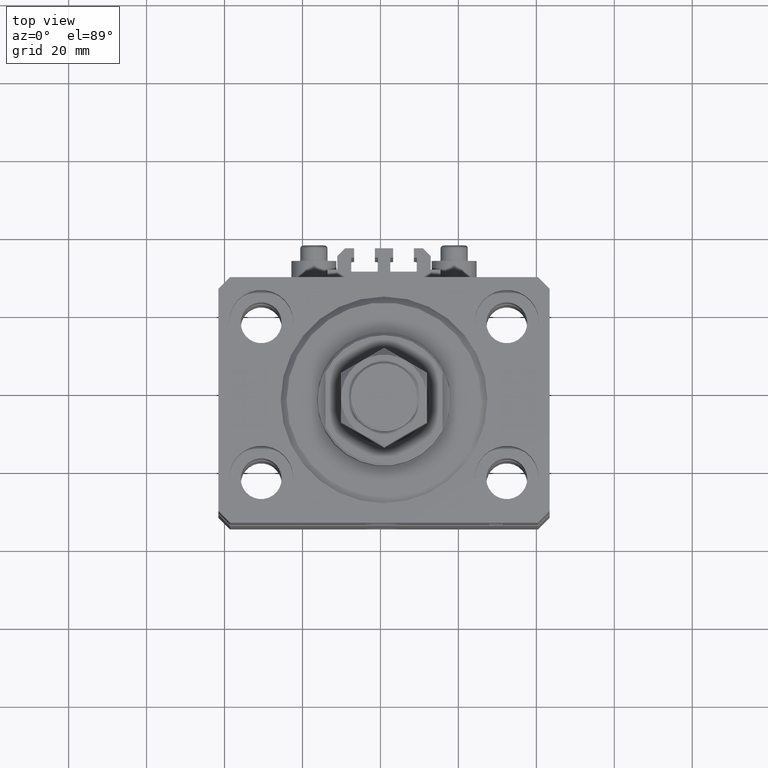
[diagram: clean part render]
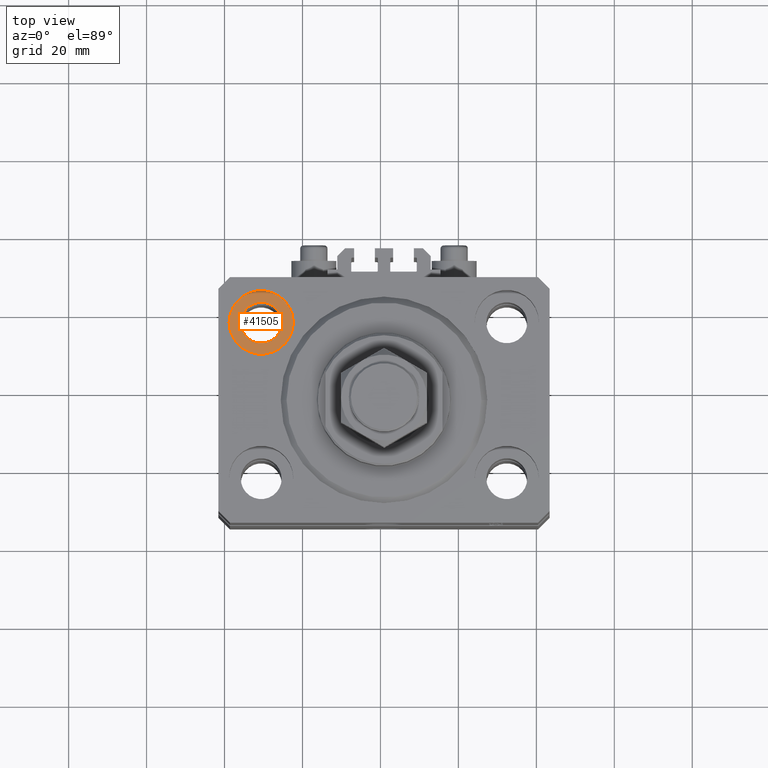
[diagram: same view with one face highlighted and labeled with its STEP entity id]
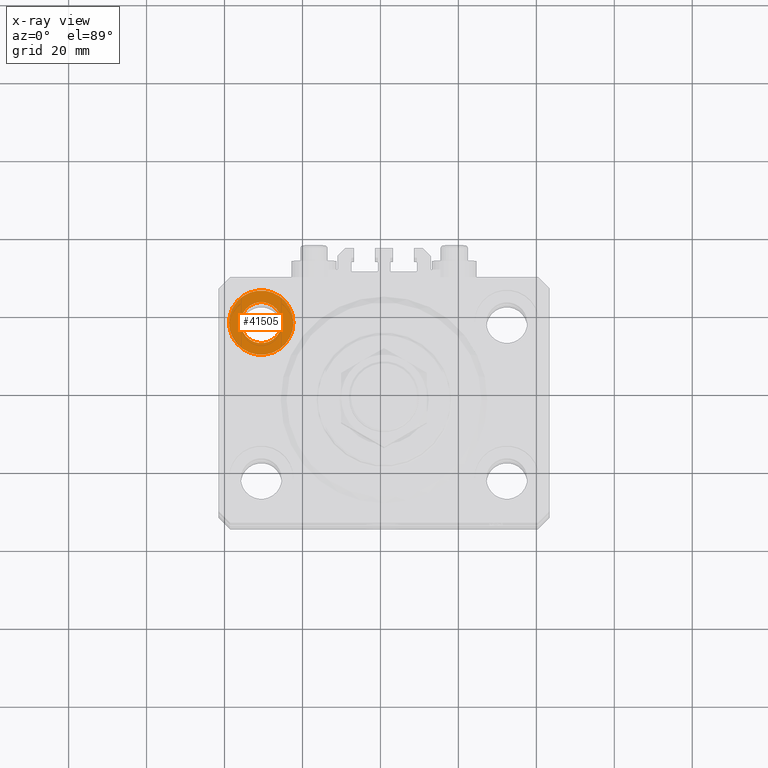
[diagram: x-ray of the same camera — body ghosted, the highlighted face saturated]
A machine part, top view. The second image highlights one B-rep face of the part: STEP entity #41505.
The next image is the same camera in x-ray: the body ghosted, the highlighted face saturated — about 0% of this face is hidden behind the body in this view.
In plain terms, the highlighted planar face has unit normal (0, 0, 1).
Its self-contained STEP definition (entity closure, byte-faithful):
#1587 = DIRECTION ( 'NONE',  ( 0.000000000000000000, 0.000000000000000000, 1.000000000000000000 ) ) ;
#2820 = VERTEX_POINT ( 'NONE', #44789 ) ;
#3392 = DIRECTION ( 'NONE',  ( 0.000000000000000000, 0.000000000000000000, 1.000000000000000000 ) ) ;
#4706 = CIRCLE ( 'NONE', #11875, 5.250000000000000888 ) ;
#5447 = CARTESIAN_POINT ( 'NONE',  ( -23.25000000000000000, 20.00000000000000000, -11.00000000000000000 ) ) ;
#5473 = CIRCLE ( 'NONE', #34874, 5.250000000000000888 ) ;
#6371 = CARTESIAN_POINT ( 'NONE',  ( -31.50000000000000000, 20.00000000000000000, -11.00000000000000000 ) ) ;
#6716 = CIRCLE ( 'NONE', #25022, 8.250000000000000000 ) ;
#9622 = DIRECTION ( 'NONE',  ( 0.000000000000000000, 0.000000000000000000, 1.000000000000000000 ) ) ;
#10309 = PLANE ( 'NONE',  #11986 ) ;
#11875 = AXIS2_PLACEMENT_3D ( 'NONE', #13220, #43583, #36348 ) ;
#11986 = AXIS2_PLACEMENT_3D ( 'NONE', #25505, #1587, #31959 ) ;
#12295 = EDGE_CURVE ( 'NONE', #27631, #2820, #6716, .T. ) ;
#12629 = CARTESIAN_POINT ( 'NONE',  ( -36.75000000000000000, 20.00000000000000000, -11.00000000000000000 ) ) ;
#13220 = CARTESIAN_POINT ( 'NONE',  ( -31.50000000000000000, 20.00000000000000000, -11.00000000000000000 ) ) ;
#13381 = DIRECTION ( 'NONE',  ( 1.000000000000000000, 0.000000000000000000, 0.000000000000000000 ) ) ;
#13800 = FACE_BOUND ( 'NONE', #38155, .T. ) ;
#16366 = CARTESIAN_POINT ( 'NONE',  ( -26.25000000000000000, 20.00000000000000000, -11.00000000000000000 ) ) ;
#16874 = CARTESIAN_POINT ( 'NONE',  ( -31.50000000000000000, 20.00000000000000000, -11.00000000000000000 ) ) ;
#18841 = CARTESIAN_POINT ( 'NONE',  ( -31.50000000000000000, 20.00000000000000000, -11.00000000000000000 ) ) ;
#18929 = ORIENTED_EDGE ( 'NONE', *, *, #29603, .F. ) ;
#19094 = AXIS2_PLACEMENT_3D ( 'NONE', #18841, #3392, #43797 ) ;
#23838 = CIRCLE ( 'NONE', #19094, 8.250000000000000000 ) ;
#24811 = DIRECTION ( 'NONE',  ( 1.000000000000000000, 0.000000000000000000, 0.000000000000000000 ) ) ;
#25022 = AXIS2_PLACEMENT_3D ( 'NONE', #6371, #9622, #24811 ) ;
#25505 = CARTESIAN_POINT ( 'NONE',  ( -31.50000000000000000, 20.00000000000000000, -11.00000000000000000 ) ) ;
#25602 = EDGE_CURVE ( 'NONE', #26609, #47835, #5473, .T. ) ;
#26609 = VERTEX_POINT ( 'NONE', #16366 ) ;
#27631 = VERTEX_POINT ( 'NONE', #5447 ) ;
#27656 = EDGE_CURVE ( 'NONE', #2820, #27631, #23838, .T. ) ;
#29603 = EDGE_CURVE ( 'NONE', #47835, #26609, #4706, .T. ) ;
#31344 = ORIENTED_EDGE ( 'NONE', *, *, #12295, .T. ) ;
#31959 = DIRECTION ( 'NONE',  ( 1.000000000000000000, 0.000000000000000000, -0.000000000000000000 ) ) ;
#34874 = AXIS2_PLACEMENT_3D ( 'NONE', #16874, #39769, #13381 ) ;
#36348 = DIRECTION ( 'NONE',  ( 1.000000000000000000, 0.000000000000000000, 0.000000000000000000 ) ) ;
#37686 = EDGE_LOOP ( 'NONE', ( #31344, #42929 ) ) ;
#38082 = ORIENTED_EDGE ( 'NONE', *, *, #25602, .F. ) ;
#38155 = EDGE_LOOP ( 'NONE', ( #38082, #18929 ) ) ;
#39769 = DIRECTION ( 'NONE',  ( 0.000000000000000000, 0.000000000000000000, 1.000000000000000000 ) ) ;
#41505 = ADVANCED_FACE ( 'NONE', ( #13800, #44418 ), #10309, .T. ) ;
#42929 = ORIENTED_EDGE ( 'NONE', *, *, #27656, .T. ) ;
#43583 = DIRECTION ( 'NONE',  ( 0.000000000000000000, 0.000000000000000000, 1.000000000000000000 ) ) ;
#43797 = DIRECTION ( 'NONE',  ( 1.000000000000000000, 0.000000000000000000, 0.000000000000000000 ) ) ;
#44418 = FACE_OUTER_BOUND ( 'NONE', #37686, .T. ) ;
#44789 = CARTESIAN_POINT ( 'NONE',  ( -39.75000000000000000, 20.00000000000000000, -11.00000000000000000 ) ) ;
#47835 = VERTEX_POINT ( 'NONE', #12629 ) ;